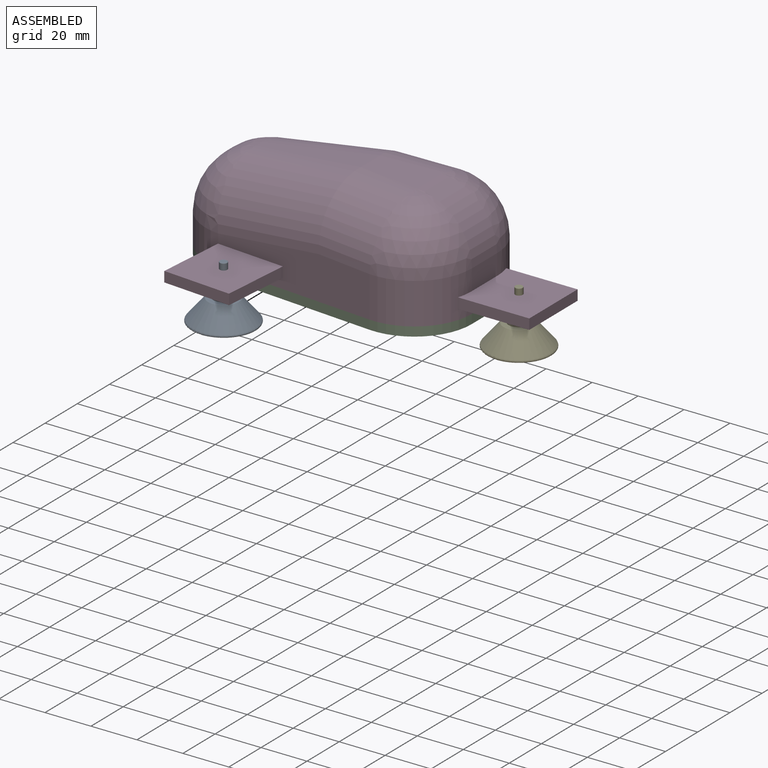
[diagram: assembled view]
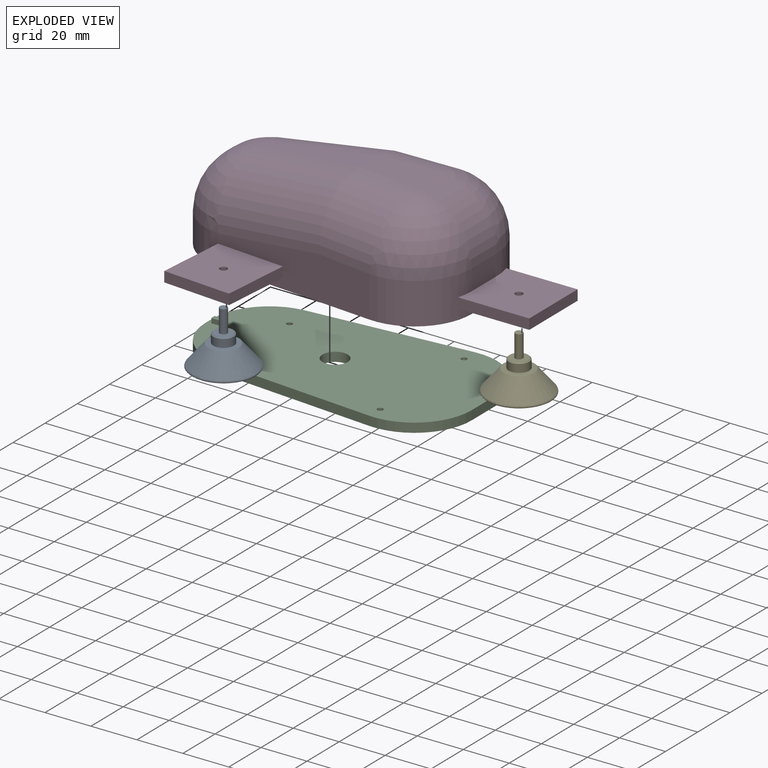
[diagram: exploded view]
GUIDED TOUR — MATED ASSEMBLY (Onshape document 5c80c6ed10bb1a0fd3f9abd2, AutoMate assembly 5c80c6ed10bb1a0fd3f9abd2_0482bf6901e2936463e2df4a_763b3983fa797b9a7181a72b_default)

This assembly has 5 components, labeled P0..P4 below (a component is one placed occurrence of a part; the same part can appear more than once), held together by 4 mates. A mate is a constraint between two components; its type names the relative motion it leaves free:
  FASTENED — locks the two components together rigidly (no relative motion),
  SLIDER — leaves translation along the listed axis free.
Axis/direction vectors are unit vectors and 'through' points are millimeter coordinates, both in the assembly's world frame.

MATES
  1. SLIDER "Gleiter 1": P0 <-> P3, axis (0.000, 0.000, -1.000) through (69.66, 54.30, 37.34) mm
  2. FASTENED "Fest 1": P2 <-> P3, direction (0.000, 0.000, 1.000) through (58.03, 82.90, 30.64) mm
  3. SLIDER "Gleiter 2": P1 <-> P3, axis (0.000, 0.000, -1.000) through (69.66, 140.51, 37.34) mm
  4. SLIDER "Gleiter 3": P4 <-> P3, axis (0.000, 0.000, -1.000) through (168.03, 97.40, 37.34) mm

ASSEMBLY ORDER
  1. P3 — the base component [order verified]
  2. P1 [order verified]
  3. P0 [order verified]
  4. P4 [order verified]
  5. P2 [order verified]
Order-tag legend:
  [order verified] — this step's position reverses a verified removal order: the component was checked to insert without passing through the ones already placed.

Of the 5 components, 1 carries the full construction recipe — the FeatureScript program that regenerates the part's solid from scratch; the rest are supplied as boundary geometry only.
Each toured component is shown spotlighted twice — in the assembled view, then in the exploded view, where a leader line traces a displaced component back to its assembled socket (saturated green if recipe-attached, orange if geometry-only; every other component desaturated gray) — followed by its recipe or geometry summary and the mates that hold it.
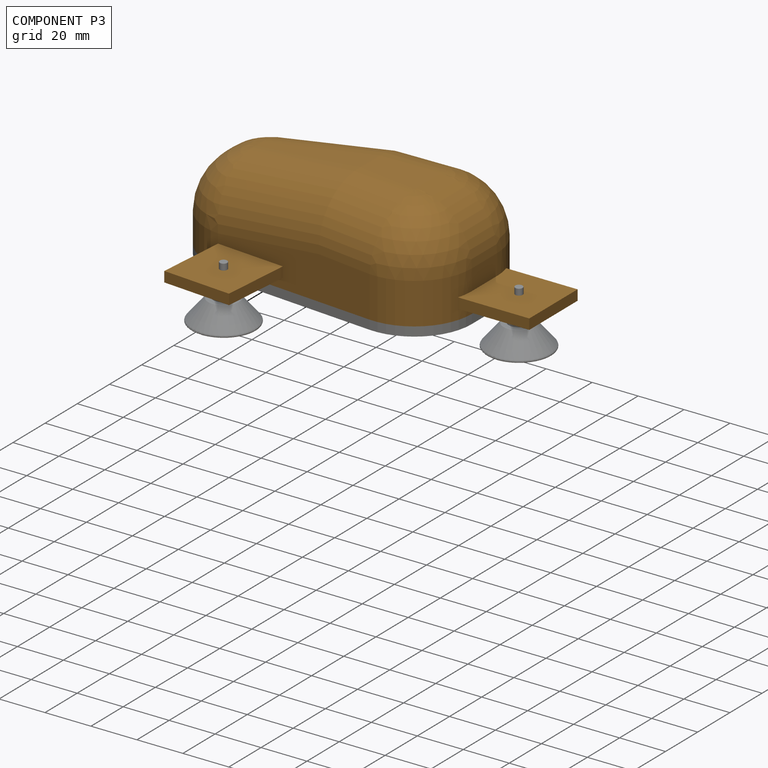
[diagram: component P3 — assembled]
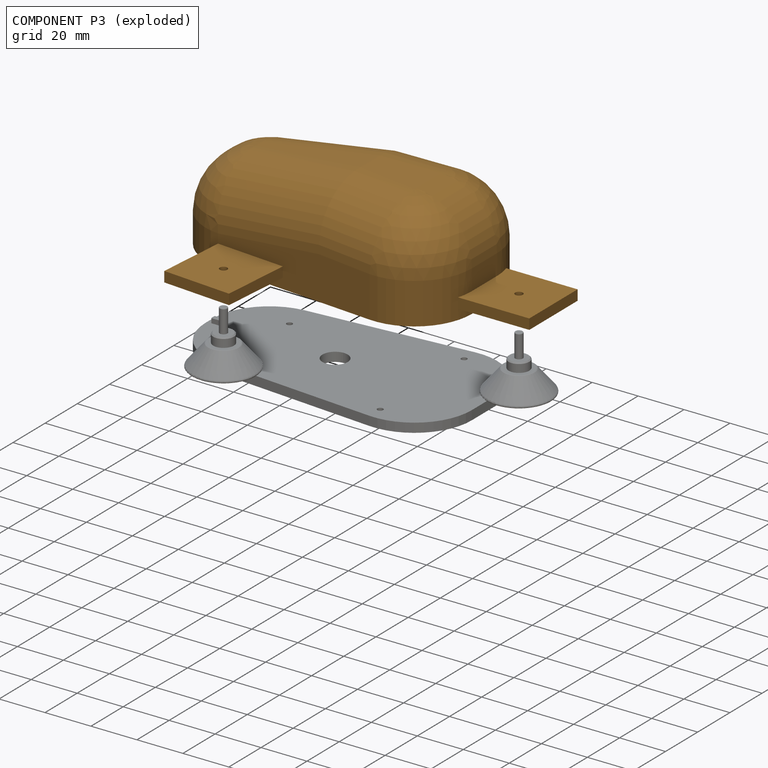
[diagram: component P3 — exploded]
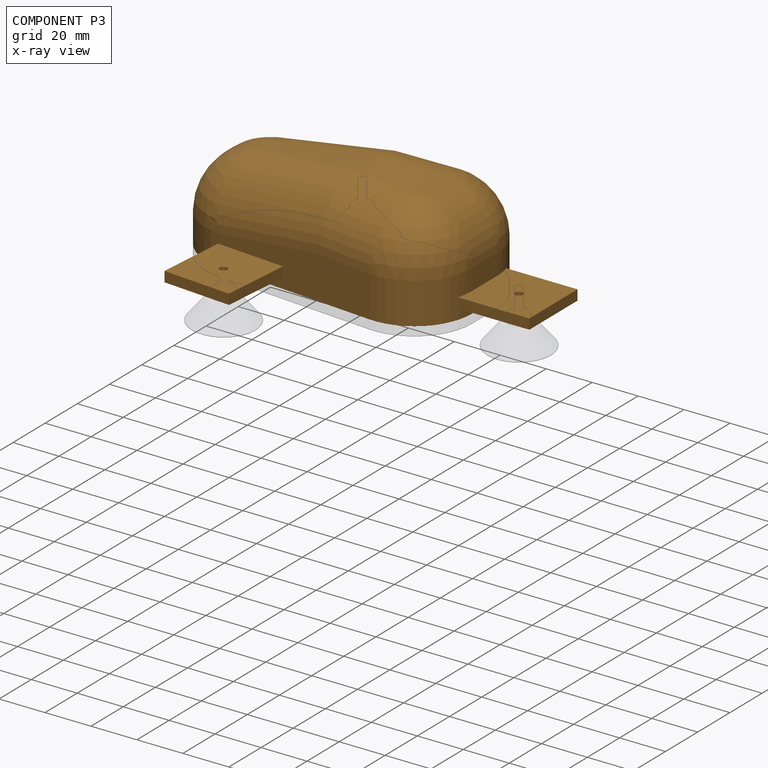
[diagram: component P3 — x-ray view]
COMPONENT P3 — geometry summary (no construction recipe available for this part):
  bounding box: 150.0 x 118.6 x 43.8 mm
  B-rep topology: 1 solid, 74 faces, 384 edges
  volume: 209049 mm^3 (27% of its bounding box)
  symmetry: mirror-symmetric across its y mid-plane
Held by: SLIDER mate "Gleiter 1" to P0; FASTENED mate "Fest 1" to P2; SLIDER mate "Gleiter 2" to P1; SLIDER mate "Gleiter 3" to P4.
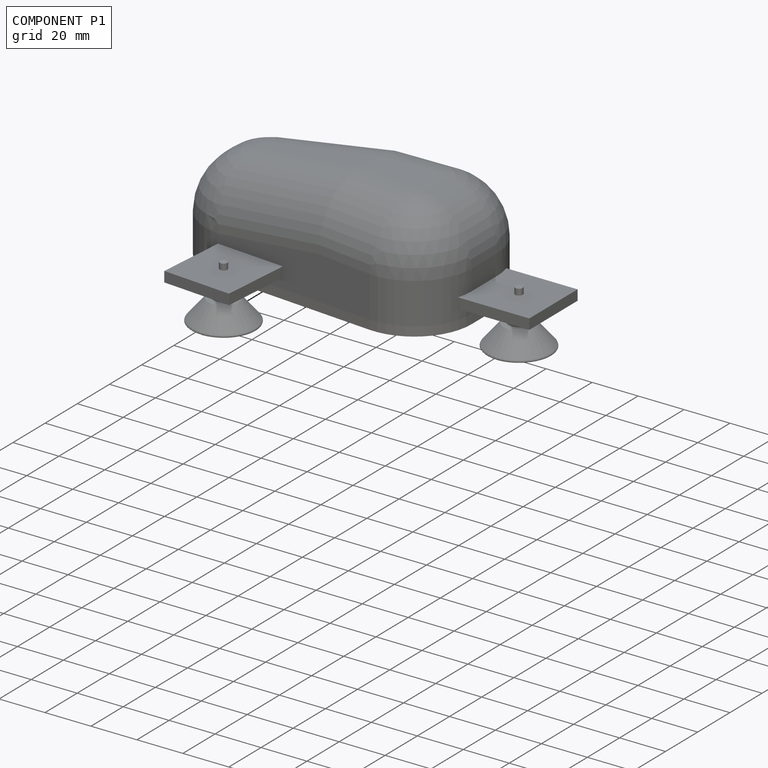
[diagram: component P1 — assembled]
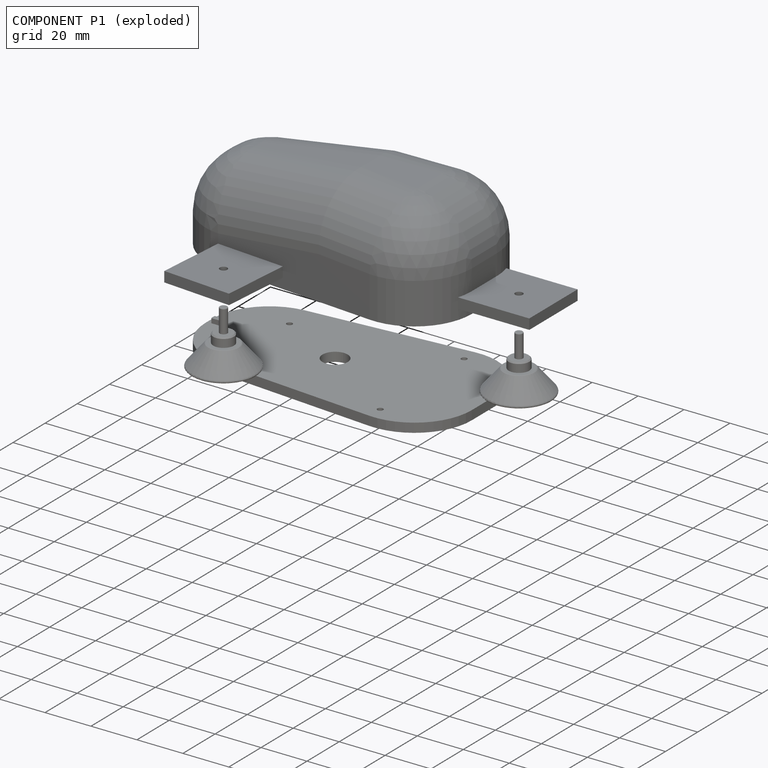
[diagram: component P1 — exploded]
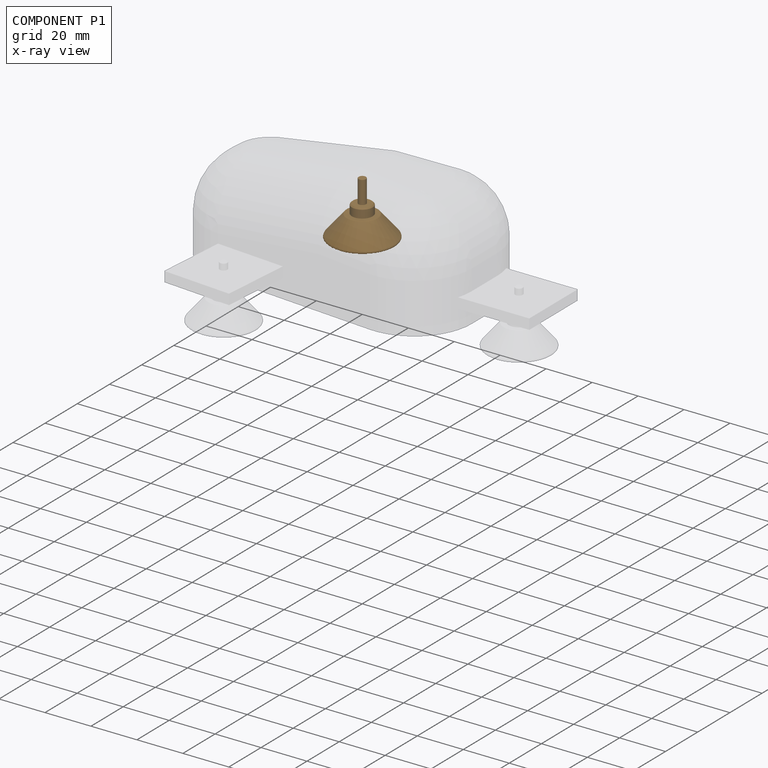
[diagram: component P1 — x-ray view]
COMPONENT P1 — geometry summary (no construction recipe available for this part):
  bounding box: 30.4 x 30.4 x 23.7 mm
  B-rep topology: 1 solid, 13 faces, 51 edges
  volume: 2117 mm^3 (10% of its bounding box)
  symmetry: revolution-symmetric about the z axis through its bounding-box center; mirror-symmetric across its x mid-plane, y mid-plane
Held by: SLIDER mate "Gleiter 2" to P3.
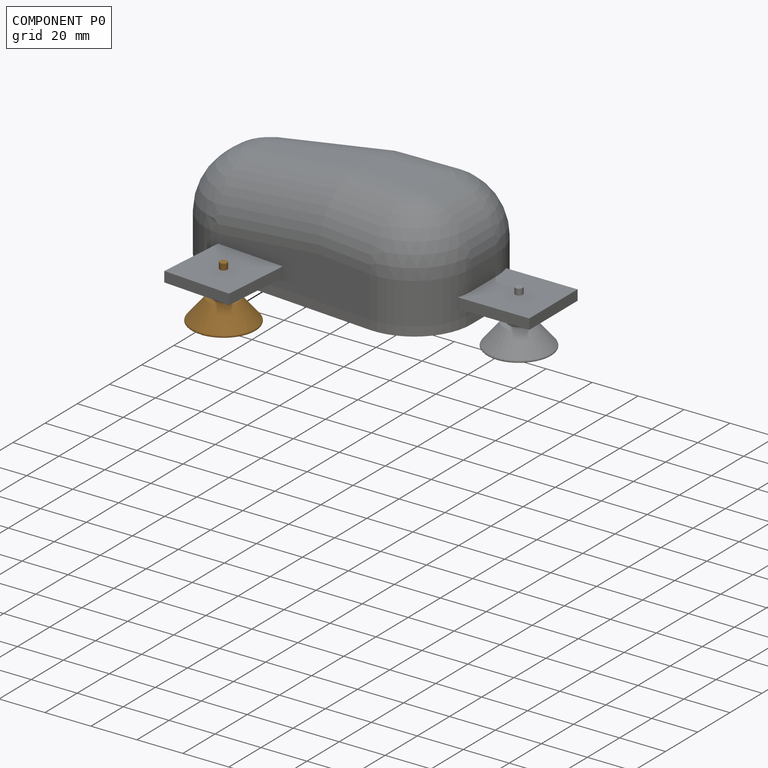
[diagram: component P0 — assembled]
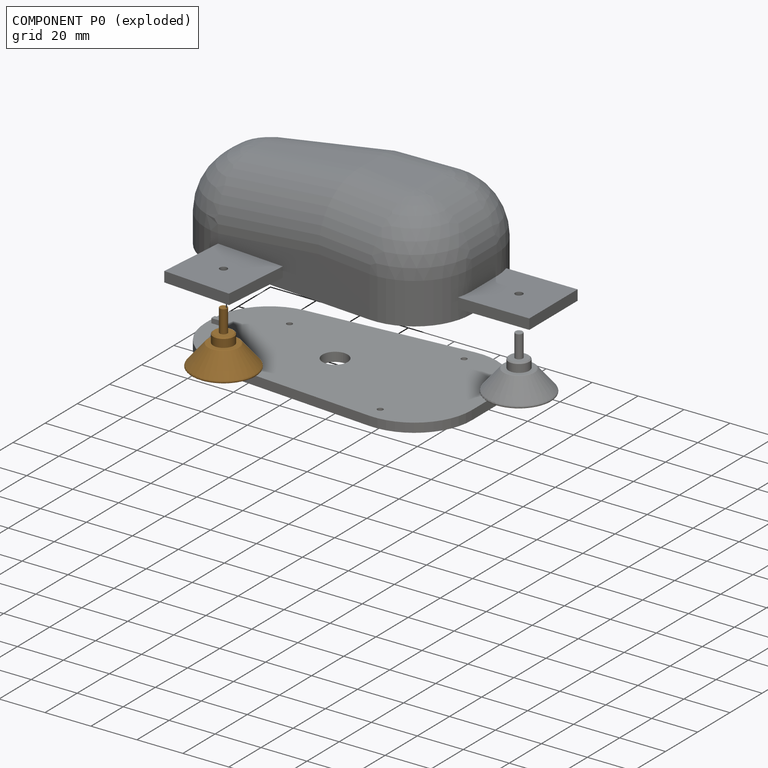
[diagram: component P0 — exploded]
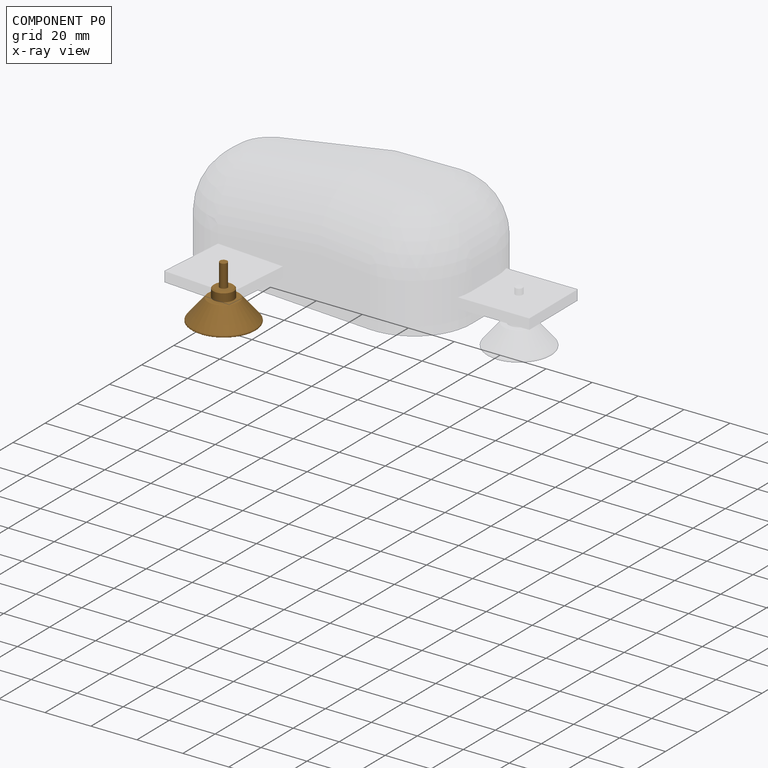
[diagram: component P0 — x-ray view]
COMPONENT P0 — geometry summary (no construction recipe available for this part):
  bounding box: 30.4 x 30.4 x 23.7 mm
  B-rep topology: 1 solid, 13 faces, 51 edges
  volume: 2117 mm^3 (10% of its bounding box)
  symmetry: revolution-symmetric about the z axis through its bounding-box center; mirror-symmetric across its x mid-plane, y mid-plane
Held by: SLIDER mate "Gleiter 1" to P3.
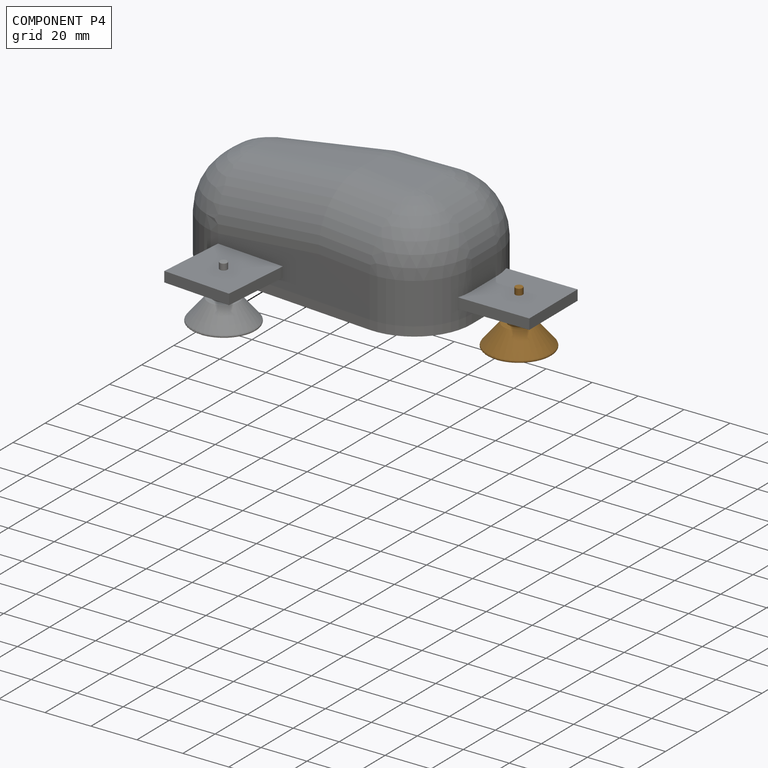
[diagram: component P4 — assembled]
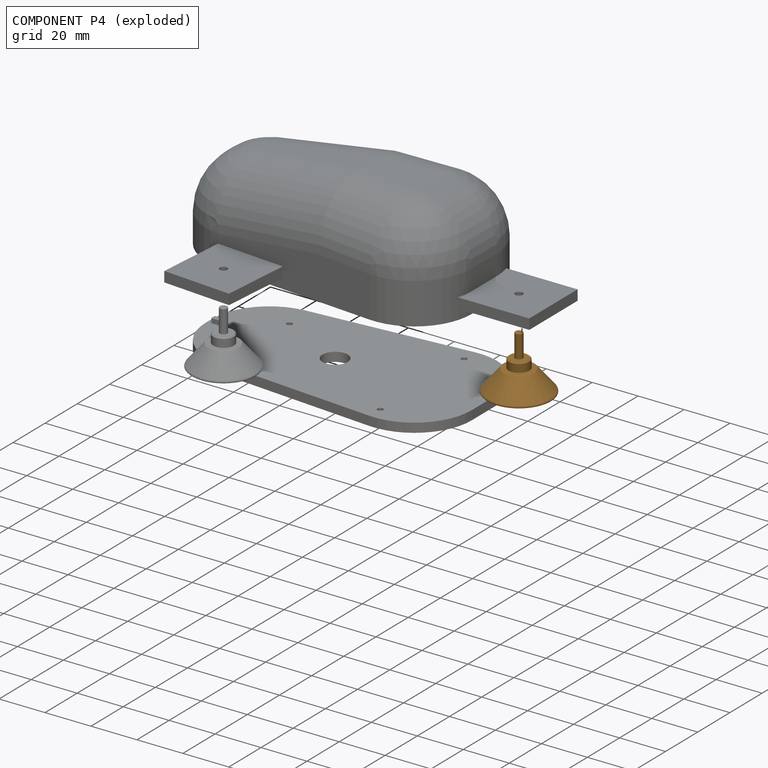
[diagram: component P4 — exploded]
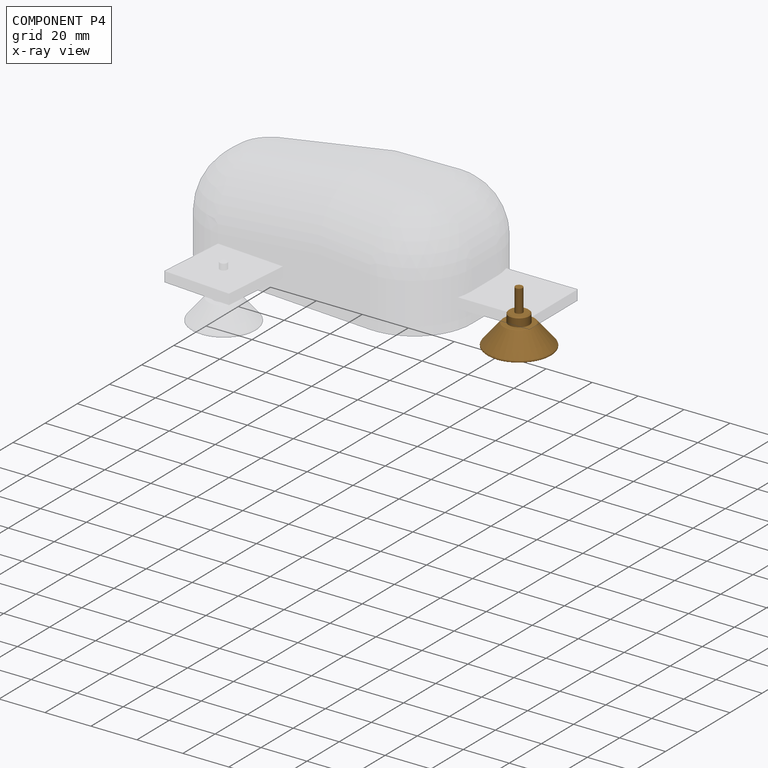
[diagram: component P4 — x-ray view]
COMPONENT P4 — geometry summary (no construction recipe available for this part):
  bounding box: 30.4 x 30.4 x 23.7 mm
  B-rep topology: 1 solid, 13 faces, 51 edges
  volume: 2117 mm^3 (10% of its bounding box)
  symmetry: revolution-symmetric about the z axis through its bounding-box center; mirror-symmetric across its x mid-plane, y mid-plane
Held by: SLIDER mate "Gleiter 3" to P3.
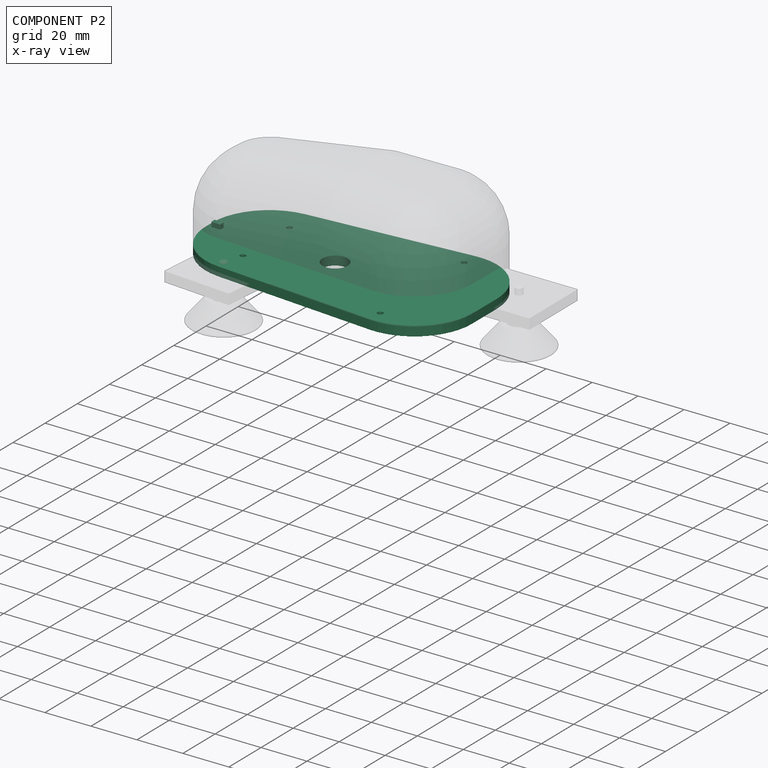
[diagram: component P2 — x-ray view]
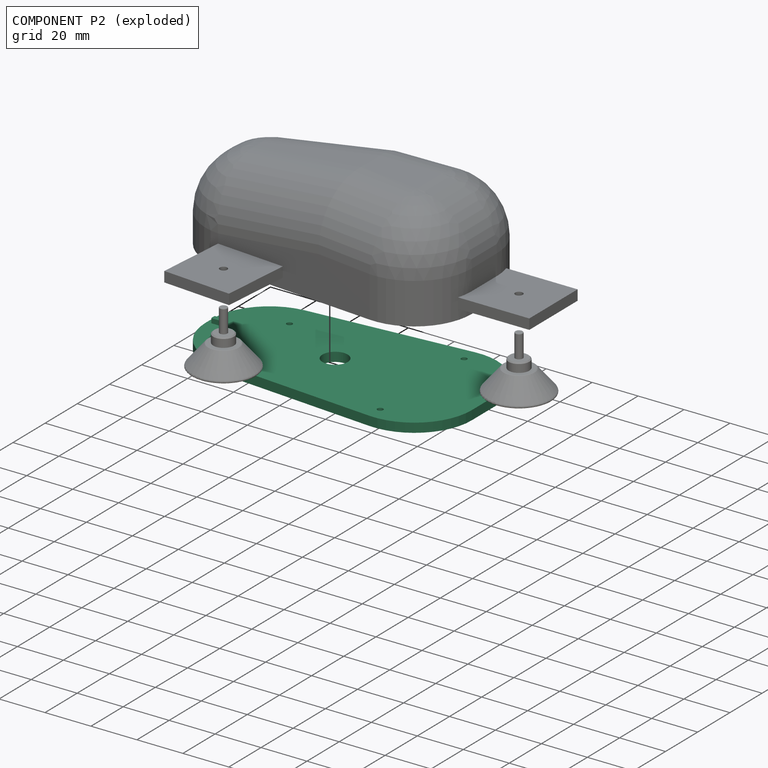
[diagram: component P2 — exploded]
COMPONENT P2 — recipe-attached (CADFS 00842144, mesh-verified: the recipe's output STEP matches this component's geometry to below the mesh-comparison resolution (tessellation chordal tolerance ~0.205 mm)).
Held by: FASTENED mate "Fest 1" to P3.
Construction recipe (FeatureScript — the CAD program that rebuilds this solid; sketch coordinates are in the units given by the * unit suffixes, e.g. mm):

FeatureScript 1511;
import(path : "onshape/std/geometry.fs", version : "1511.0");
import(path : "onshape/std/common.fs", version : "1511.0");
const mm = millimeter;
const VERTEX = EntityType.VERTEX;
const EDGE = EntityType.EDGE;
const FACE = EntityType.FACE;
const BODY = EntityType.BODY;
function v(x, y){return vector(x, y);}
function OD(order){return orderDisambiguation(order);}
function OSD(set){return originalSetDisambiguation(set);}
function TD(topology){return topologyDisambiguation(topology);}
function TDD(query){return trueDependencyDisambiguation(query);}
function sQuery(a, b, c) {return sketchEntityQuery(a, b, c);}

annotation { "Feature Type Name" : "Feature", "Feature Type Description" : "" }
export const myFeature = defineFeature(function(context is Context, id is Id, definition is map)
    precondition{}
    {
        {
            var Q0;
            Q0=qCreatedBy(makeId("Top.planeOp"),FACE);
            var sketch = newSketch(context, id + "F0", { "sketchPlane" : qUnion([Q0])});
            skArc(sketch, "E0.0.0", {"start": v(-46.03, 5.44) * mm, "mid": v(-48.71, 1) * mm, "end": v(-53.63, -0.65) * mm});
            skLineSegment(sketch, "E0.0.1", {"start": v(-53.63, -0.65) * mm, "end": v(-59.43, -0.65) * mm});
            skLineSegment(sketch, "E0.0.2", {"start": v(-59.43, -0.65) * mm, "end": v(-59.43, -1.35) * mm});
            skArc(sketch, "E0.0.3", {"start": v(-59.43, -1.35) * mm, "mid": v(-52.83, -18.28) * mm, "end": v(-36.5, -26.26) * mm});
            skLineSegment(sketch, "E0.0.4", {"start": v(-36.5, -26.26) * mm, "end": v(33.5, -32.1) * mm});
            skArc(sketch, "E0.0.5", {"start": v(33.5, -32.1) * mm, "mid": v(52.5, -25.58) * mm, "end": v(60.57, -7.18) * mm});
            skLineSegment(sketch, "E0.0.6", {"start": v(60.57, -7.18) * mm, "end": v(60.57, 8.48) * mm});
            skArc(sketch, "E0.0.7", {"start": v(60.57, 8.48) * mm, "mid": v(52.5, 26.88) * mm, "end": v(33.5, 33.4) * mm});
            skLineSegment(sketch, "E0.0.8", {"start": v(33.5, 33.4) * mm, "end": v(-36.5, 27.56) * mm});
            skArc(sketch, "E0.0.9", {"start": v(-36.5, 27.56) * mm, "mid": v(-52.83, 19.57) * mm, "end": v(-59.43, 2.64) * mm});
            skLineSegment(sketch, "E0.0.10", {"start": v(-59.43, 2.64) * mm, "end": v(-59.43, 1.95) * mm});
            skLineSegment(sketch, "E0.0.11", {"start": v(-59.43, 1.95) * mm, "end": v(-53.63, 1.95) * mm});
            skArc(sketch, "E0.0.12", {"start": v(-53.63, 1.95) * mm, "mid": v(-50.35, 2.85) * mm, "end": v(-48.4, 5.63) * mm});
            skArc(sketch, "E0.0.13", {"start": v(-48.4, 5.63) * mm, "mid": v(-40.83, 12.6) * mm, "end": v(-33.43, 5.44) * mm});
            skArc(sketch, "E0.0.14", {"start": v(-33.43, 5.44) * mm, "mid": v(-31.53, 2.84) * mm, "end": v(-28.43, 1.95) * mm});
            skLineSegment(sketch, "E0.0.15", {"start": v(-28.43, 1.95) * mm, "end": v(-15.43, 1.95) * mm});
            skLineSegment(sketch, "E0.0.16", {"start": v(-15.43, 1.95) * mm, "end": v(-15.43, 15.25) * mm});
            skLineSegment(sketch, "E0.0.17", {"start": v(-15.43, 15.25) * mm, "end": v(-4.93, 15.25) * mm});
            skLineSegment(sketch, "E0.0.18", {"start": v(-4.93, 15.25) * mm, "end": v(-4.93, 17.18) * mm});
            skArc(sketch, "E0.0.19", {"start": v(-4.93, 17.18) * mm, "mid": v(-0.83, 21.28) * mm, "end": v(3.27, 17.18) * mm});
            skLineSegment(sketch, "E0.0.20", {"start": v(3.27, 17.18) * mm, "end": v(3.27, 15.25) * mm});
            skLineSegment(sketch, "E0.0.21", {"start": v(3.27, 15.25) * mm, "end": v(29.22, 15.25) * mm});
            skLineSegment(sketch, "E0.0.22", {"start": v(29.22, 15.25) * mm, "end": v(29.22, 17.18) * mm});
            skArc(sketch, "E0.0.23", {"start": v(29.22, 17.18) * mm, "mid": v(33.32, 21.28) * mm, "end": v(37.42, 17.18) * mm});
            skLineSegment(sketch, "E0.0.24", {"start": v(37.42, 17.18) * mm, "end": v(37.42, 15.25) * mm});
            skLineSegment(sketch, "E0.0.25", {"start": v(37.42, 15.25) * mm, "end": v(47.92, 15.25) * mm});
            skLineSegment(sketch, "E0.0.26", {"start": v(47.92, 15.25) * mm, "end": v(47.92, -13.95) * mm});
            skLineSegment(sketch, "E0.0.27", {"start": v(47.92, -13.95) * mm, "end": v(37.42, -13.95) * mm});
            skLineSegment(sketch, "E0.0.28", {"start": v(37.42, -13.95) * mm, "end": v(37.42, -15.88) * mm});
            skArc(sketch, "E0.0.29", {"start": v(37.42, -15.88) * mm, "mid": v(33.32, -19.98) * mm, "end": v(29.22, -15.88) * mm});
            skLineSegment(sketch, "E0.0.30", {"start": v(29.22, -15.88) * mm, "end": v(29.22, -13.95) * mm});
            skLineSegment(sketch, "E0.0.31", {"start": v(29.22, -13.95) * mm, "end": v(3.27, -13.95) * mm});
            skLineSegment(sketch, "E0.0.32", {"start": v(3.27, -13.95) * mm, "end": v(3.27, -15.88) * mm});
            skArc(sketch, "E0.0.33", {"start": v(3.27, -15.88) * mm, "mid": v(-0.83, -19.98) * mm, "end": v(-4.93, -15.88) * mm});
            skLineSegment(sketch, "E0.0.34", {"start": v(-4.93, -15.88) * mm, "end": v(-4.93, -13.95) * mm});
            skLineSegment(sketch, "E0.0.35", {"start": v(-4.93, -13.95) * mm, "end": v(-15.43, -13.95) * mm});
            skLineSegment(sketch, "E0.0.36", {"start": v(-15.43, -13.95) * mm, "end": v(-15.43, -0.65) * mm});
            skLineSegment(sketch, "E0.0.37", {"start": v(-15.43, -0.65) * mm, "end": v(-28.43, -0.65) * mm});
            skArc(sketch, "E0.0.38", {"start": v(-28.43, -0.65) * mm, "mid": v(-33.36, 1) * mm, "end": v(-36.03, 5.44) * mm});
            skArc(sketch, "E0.0.39", {"start": v(-36.03, 5.44) * mm, "mid": v(-41.03, 10.44) * mm, "end": v(-46.03, 5.44) * mm});
            skCircle(sketch, "E1.0", {"center": v(-34.43, 15.14) * mm, "radius": 1.25 * mm});
            skPoint(sketch, "E2.0", {"position": v(-34.43, -13.85) * mm});
            skCircle(sketch, "E3.0", {"center": v(-34.43, -13.85) * mm, "radius": 1.25 * mm});
            skCircle(sketch, "E4.0", {"center": v(33.5, -25.38) * mm, "radius": 1.25 * mm});
            skCircle(sketch, "E5.0", {"center": v(33.43, 26.68) * mm, "radius": 1.25 * mm});
            skCircle(sketch, "E6", {"center": v(-4.43, 0.66) * mm, "radius": 5.5 * mm});
            skLineSegment(sketch, "E7", {"start": v(-53.63, 1.95) * mm, "end": v(-53.63, -0.65) * mm});
            skLineSegment(sketch, "E8", {"start": v(-57.63, 0.65) * mm, "end": v(-57.63, -0.65) * mm});
            skLineSegment(sketch, "E9", {"start": v(-57.63, -0.65) * mm, "end": v(-57.63, 1.95) * mm});
            skLineSegment(sketch, "E10", {"start": v(-59.43, 1.95) * mm, "end": v(-59.43, -0.65) * mm});
            skSolve(sketch);
        }
        {
            var Q0;
            Q0=makeQuery(id+"F0.imprint","IMPRINT",FACE,{"disambiguationData":[TD([[makeQuery(id+"F0.imprint","IMPRINT",EDGE,{"derivedFrom":sQuery(id+"F0.wireOp",EDGE,"f2d0978f-a5e2-4eee-89b1-d31b48b31204.0.0")}),1.0]])]});
            var Q1;
            Q1=makeQuery(id+"F0.imprint","IMPRINT",FACE,{"disambiguationData":[TD([[makeQuery(id+"F0.imprint","IMPRINT",EDGE,{"derivedFrom":sQuery(id+"F0.wireOp",EDGE,"ac3f7785-ddd1-404e-9a58-e7037b63adee.0")}),-1.0]])]});
            var Q2;
            {var subQ9=sQuery(id+"F0.wireOp",EDGE,"E0.0.0");Q2=makeQuery(id+"F0.imprint","IMPRINT",FACE,{"disambiguationData":[TD([[makeQuery(id+"F0.imprint","IMPRINT",EDGE,{"derivedFrom":subQ9}),1.0]])]});}
            var Q3;
            Q3=makeQuery(id+"F0.imprint","IMPRINT",FACE,{"disambiguationData":[TD([[makeQuery(id+"F0.imprint","IMPRINT",EDGE,{"derivedFrom":sQuery(id+"F0.wireOp",EDGE,"E0.0.0")}),-1.0]])]});
            var Q4;
            {var subQ6=sQuery(id+"F0.wireOp",EDGE,"E10");Q4=makeQuery(id+"F0.imprint","IMPRINT",FACE,{"disambiguationData":[TD([[makeQuery(id+"F0.imprint","IMPRINT",EDGE,{"derivedFrom":subQ6}),1.0]])]});}
            var Q5;
            {var subQ0=sQuery(id+"F0.wireOp",EDGE,"E7");Q5=makeQuery(id+"F0.imprint","IMPRINT",FACE,{"disambiguationData":[TD([[makeQuery(id+"F0.imprint","IMPRINT",EDGE,{"derivedFrom":subQ0}),-1.0]])]});}
            extrude(context, id + "F1", {"entities" : qUnion([Q0, Q1, Q2, Q3, Q4, Q5]), "depth" : 4 * mm, "offsetDistance" : 25 * mm});
        }
        {
            var Q0;
            Q0=makeQuery(id+"F1.opExtrude","CAP_FACE",FACE,{"disambiguationData":[OSD([sQuery(id+"F0.wireOp",EDGE,"E0.0.2"),sQuery(id+"F0.wireOp",EDGE,"E0.0.3"),sQuery(id+"F0.wireOp",EDGE,"E0.0.4"),sQuery(id+"F0.wireOp",EDGE,"E0.0.5"),sQuery(id+"F0.wireOp",EDGE,"E0.0.6"),sQuery(id+"F0.wireOp",EDGE,"E0.0.7"),sQuery(id+"F0.wireOp",EDGE,"E0.0.8"),sQuery(id+"F0.wireOp",EDGE,"E0.0.9"),sQuery(id+"F0.wireOp",EDGE,"E0.0.10"),sQuery(id+"F0.wireOp",EDGE,"E1.0"),sQuery(id+"F0.wireOp",EDGE,"E3.0"),sQuery(id+"F0.wireOp",EDGE,"E4.0"),sQuery(id+"F0.wireOp",EDGE,"E5.0"),sQuery(id+"F0.wireOp",EDGE,"E6"),sQuery(id+"F0.wireOp",EDGE,"E10")])],"isStart":true});
            var sketch = newSketch(context, id + "F2", { "sketchPlane" : qUnion([Q0])});
            skArc(sketch, "E11.0", {"start": v(-46.03, -5.44) * mm, "mid": v(-48.71, -1) * mm, "end": v(-53.63, 0.65) * mm});
            skLineSegment(sketch, "E11.1", {"start": v(-53.63, 0.65) * mm, "end": v(-59.43, 0.65) * mm});
            skLineSegment(sketch, "E11.2", {"start": v(-59.43, 0.65) * mm, "end": v(-59.43, 1.35) * mm});
            skArc(sketch, "E11.3", {"start": v(-59.43, 1.35) * mm, "mid": v(-52.83, 18.28) * mm, "end": v(-36.5, 26.26) * mm});
            skLineSegment(sketch, "E11.4", {"start": v(-36.5, 26.26) * mm, "end": v(33.5, 32.1) * mm});
            skArc(sketch, "E11.5", {"start": v(33.5, 32.1) * mm, "mid": v(52.5, 25.58) * mm, "end": v(60.57, 7.18) * mm});
            skLineSegment(sketch, "E11.6", {"start": v(60.57, 7.18) * mm, "end": v(60.57, -8.48) * mm});
            skArc(sketch, "E11.7", {"start": v(60.57, -8.48) * mm, "mid": v(52.5, -26.88) * mm, "end": v(33.5, -33.4) * mm});
            skLineSegment(sketch, "E11.8", {"start": v(33.5, -33.4) * mm, "end": v(-36.5, -27.56) * mm});
            skArc(sketch, "E11.9", {"start": v(-36.5, -27.56) * mm, "mid": v(-52.83, -19.57) * mm, "end": v(-59.43, -2.64) * mm});
            skLineSegment(sketch, "E11.10", {"start": v(-59.43, -2.64) * mm, "end": v(-59.43, -1.95) * mm});
            skLineSegment(sketch, "E11.11", {"start": v(-59.43, -1.95) * mm, "end": v(-53.63, -1.95) * mm});
            skArc(sketch, "E11.12", {"start": v(-53.63, -1.95) * mm, "mid": v(-50.35, -2.85) * mm, "end": v(-48.4, -5.63) * mm});
            skArc(sketch, "E11.13", {"start": v(-48.4, -5.63) * mm, "mid": v(-40.83, -12.6) * mm, "end": v(-33.43, -5.44) * mm});
            skArc(sketch, "E11.14", {"start": v(-33.43, -5.44) * mm, "mid": v(-31.53, -2.84) * mm, "end": v(-28.43, -1.95) * mm});
            skLineSegment(sketch, "E11.15", {"start": v(-28.43, -1.95) * mm, "end": v(-15.43, -1.95) * mm});
            skLineSegment(sketch, "E11.16", {"start": v(-15.43, -1.95) * mm, "end": v(-15.43, -15.25) * mm});
            skLineSegment(sketch, "E11.17", {"start": v(-15.43, -15.25) * mm, "end": v(-4.93, -15.25) * mm});
            skLineSegment(sketch, "E11.18", {"start": v(-4.93, -15.25) * mm, "end": v(-4.93, -17.18) * mm});
            skArc(sketch, "E11.19", {"start": v(-4.93, -17.18) * mm, "mid": v(-0.83, -21.28) * mm, "end": v(3.27, -17.18) * mm});
            skLineSegment(sketch, "E11.20", {"start": v(3.27, -17.18) * mm, "end": v(3.27, -15.25) * mm});
            skLineSegment(sketch, "E11.21", {"start": v(3.27, -15.25) * mm, "end": v(29.22, -15.25) * mm});
            skLineSegment(sketch, "E11.22", {"start": v(29.22, -15.25) * mm, "end": v(29.22, -17.18) * mm});
            skArc(sketch, "E11.23", {"start": v(29.22, -17.18) * mm, "mid": v(33.32, -21.28) * mm, "end": v(37.42, -17.18) * mm});
            skLineSegment(sketch, "E11.24", {"start": v(37.42, -17.18) * mm, "end": v(37.42, -15.25) * mm});
            skLineSegment(sketch, "E11.25", {"start": v(37.42, -15.25) * mm, "end": v(47.92, -15.25) * mm});
            skLineSegment(sketch, "E11.26", {"start": v(47.92, -15.25) * mm, "end": v(47.92, 13.95) * mm});
            skLineSegment(sketch, "E11.27", {"start": v(47.92, 13.95) * mm, "end": v(37.42, 13.95) * mm});
            skLineSegment(sketch, "E11.28", {"start": v(37.42, 13.95) * mm, "end": v(37.42, 15.88) * mm});
            skArc(sketch, "E11.29", {"start": v(37.42, 15.88) * mm, "mid": v(33.32, 19.98) * mm, "end": v(29.22, 15.88) * mm});
            skLineSegment(sketch, "E11.30", {"start": v(29.22, 15.88) * mm, "end": v(29.22, 13.95) * mm});
            skLineSegment(sketch, "E11.31", {"start": v(29.22, 13.95) * mm, "end": v(3.27, 13.95) * mm});
            skLineSegment(sketch, "E11.32", {"start": v(3.27, 13.95) * mm, "end": v(3.27, 15.88) * mm});
            skArc(sketch, "E11.33", {"start": v(3.27, 15.88) * mm, "mid": v(-0.83, 19.98) * mm, "end": v(-4.93, 15.88) * mm});
            skLineSegment(sketch, "E11.34", {"start": v(-4.93, 15.88) * mm, "end": v(-4.93, 13.95) * mm});
            skLineSegment(sketch, "E11.35", {"start": v(-4.93, 13.95) * mm, "end": v(-15.43, 13.95) * mm});
            skLineSegment(sketch, "E11.36", {"start": v(-15.43, 13.95) * mm, "end": v(-15.43, 0.65) * mm});
            skLineSegment(sketch, "E11.37", {"start": v(-15.43, 0.65) * mm, "end": v(-28.43, 0.65) * mm});
            skArc(sketch, "E11.38", {"start": v(-28.43, 0.65) * mm, "mid": v(-33.36, -1) * mm, "end": v(-36.03, -5.44) * mm});
            skArc(sketch, "E11.39", {"start": v(-36.03, -5.44) * mm, "mid": v(-41.03, -10.44) * mm, "end": v(-46.03, -5.44) * mm});
            skCircle(sketch, "E11.40", {"center": v(-34.43, -15.14) * mm, "radius": 1.25 * mm});
            skPoint(sketch, "E11.41", {"position": v(-34.43, 13.85) * mm});
            skCircle(sketch, "E11.42", {"center": v(-34.43, 13.85) * mm, "radius": 1.25 * mm});
            skCircle(sketch, "E11.43", {"center": v(33.5, 25.38) * mm, "radius": 1.25 * mm});
            skCircle(sketch, "E11.44", {"center": v(33.43, -26.68) * mm, "radius": 1.25 * mm});
            skCircle(sketch, "E11.45", {"center": v(-4.43, -0.66) * mm, "radius": 5.5 * mm});
            skLineSegment(sketch, "E11.46", {"start": v(-53.63, -1.55) * mm, "end": v(-53.63, 0.25) * mm});
            skLineSegment(sketch, "E11.47", {"start": v(-57.63, -0.65) * mm, "end": v(-57.63, 0.25) * mm});
            skLineSegment(sketch, "E11.48", {"start": v(-57.63, 0.25) * mm, "end": v(-57.63, -1.55) * mm});
            skLineSegment(sketch, "E11.49", {"start": v(-59.43, -1.95) * mm, "end": v(-59.43, 0.65) * mm});
            skLineSegment(sketch, "E12", {"start": v(-57.43, 0.45) * mm, "end": v(-53.83, 0.45) * mm});
            skLineSegment(sketch, "E13", {"start": v(-57.43, -1.75) * mm, "end": v(-53.83, -1.75) * mm});
            skPoint(sketch, "E14.orphan", {"position": v(-57.63, 0.65) * mm});
            skPoint(sketch, "E15.orphan", {"position": v(-57.63, -1.95) * mm});
            skPoint(sketch, "E16.orphan", {"position": v(-53.63, -1.95) * mm});
            skPoint(sketch, "E17.orphan", {"position": v(-53.63, 0.65) * mm});
            skArc(sketch, "E18", {"start": v(-57.43, 0.45) * mm, "mid": v(-57.58, 0.4) * mm, "end": v(-57.63, 0.25) * mm});
            skArc(sketch, "E19", {"start": v(-53.63, 0.25) * mm, "mid": v(-53.7, 0.4) * mm, "end": v(-53.83, 0.45) * mm});
            skArc(sketch, "E20.MirrorCS", {"start": v(-57.43, -1.75) * mm, "mid": v(-57.58, -1.69) * mm, "end": v(-57.63, -1.55) * mm});
            skArc(sketch, "E21.MirrorCS", {"start": v(-53.63, -1.55) * mm, "mid": v(-53.7, -1.69) * mm, "end": v(-53.83, -1.75) * mm});
            skPoint(sketch, "E22.orphan", {"position": v(-53.63, -1.75) * mm});
            skPoint(sketch, "E23.trimOffspring.end.orphan", {"position": v(-53.63, -0.65) * mm});
            skPoint(sketch, "E24.orphan", {"position": v(-53.63, 0.45) * mm});
            skSolve(sketch);
        }
        {
            var Q0;
            {var subQ0=sQuery(id+"F2.wireOp",EDGE,"E11.46");Q0=makeQuery(id+"F2.imprint","IMPRINT",FACE,{"disambiguationData":[TD([[makeQuery(id+"F2.imprint","IMPRINT",EDGE,{"derivedFrom":subQ0}),1.0]])]});}
            extrude(context, id + "F3", {"entities" : qUnion([Q0]), "operationType" : NewBodyOperationType.ADD, "depth" : 2 * mm, "offsetDistance" : 25 * mm});
        }
        {
            var Q0;
            Q0=makeQuery(id+"F1.opExtrude","CAP_EDGE",EDGE,{"disambiguationData":[OSD([sQuery(id+"F0.wireOp",EDGE,"E1.0")])],"isStart":false});
            var Q1;
            Q1=makeQuery(id+"F1.opExtrude","CAP_EDGE",EDGE,{"disambiguationData":[OSD([sQuery(id+"F0.wireOp",EDGE,"E3.0")])],"isStart":false});
            var Q2;
            Q2=makeQuery(id+"F1.opExtrude","CAP_EDGE",EDGE,{"disambiguationData":[OSD([sQuery(id+"F0.wireOp",EDGE,"E5.0")])],"isStart":false});
            var Q3;
            Q3=makeQuery(id+"F1.opExtrude","CAP_EDGE",EDGE,{"disambiguationData":[OSD([sQuery(id+"F0.wireOp",EDGE,"E4.0")])],"isStart":false});
            chamfer(context, id + "F4", {"entities" : qUnion([Q0, Q1, Q2, Q3]), "width" : 2 * mm, "tangentPropagation" : true});
        }
    });
PROVENANCE & LICENSES
Assembly (occurrences, transforms, mates, per-part STEP geometry): AutoMate dataset, Zenodo record 7776208, CC0.
Construction recipes: CADFS (HuggingFace VladPyatov/CADFS, CC-BY-4.0, layered over the ABC dataset), FeatureScript reconstruction programs keyed by ABC model id.
Join: ABC meta listings map ABC model id -> Onshape documentId; within a shared document, parts are matched by geometric signature (bounding-box dims + volume at 0.1% relative tolerance, exact B-rep face/solid counts).
Verification: 1 of this assembly's 5 components carries a recipe attachment, and every attachment is mesh-verified: the CADFS STEP and the AutoMate member STEP were compared as meshes in their shared local frame (symmetric sampled-point-to-mesh distance); worst across the 1 attachment: below the mesh-comparison resolution (tessellation chordal tolerance ~0.205 mm) on a 137 mm part.
Renders: orthographic iso camera (az 35 / el 25); the floor grid conveys scale (grid pitch printed in each image; no ruler). In the exploded view each component is displaced by its stored offset vector: the offsets alone carry the explosion direction (mate normal/axis signs are not orientation cues and do not encode it), and separation distances are assigned per mate-chain, not proportionally to assembly-order depth.
